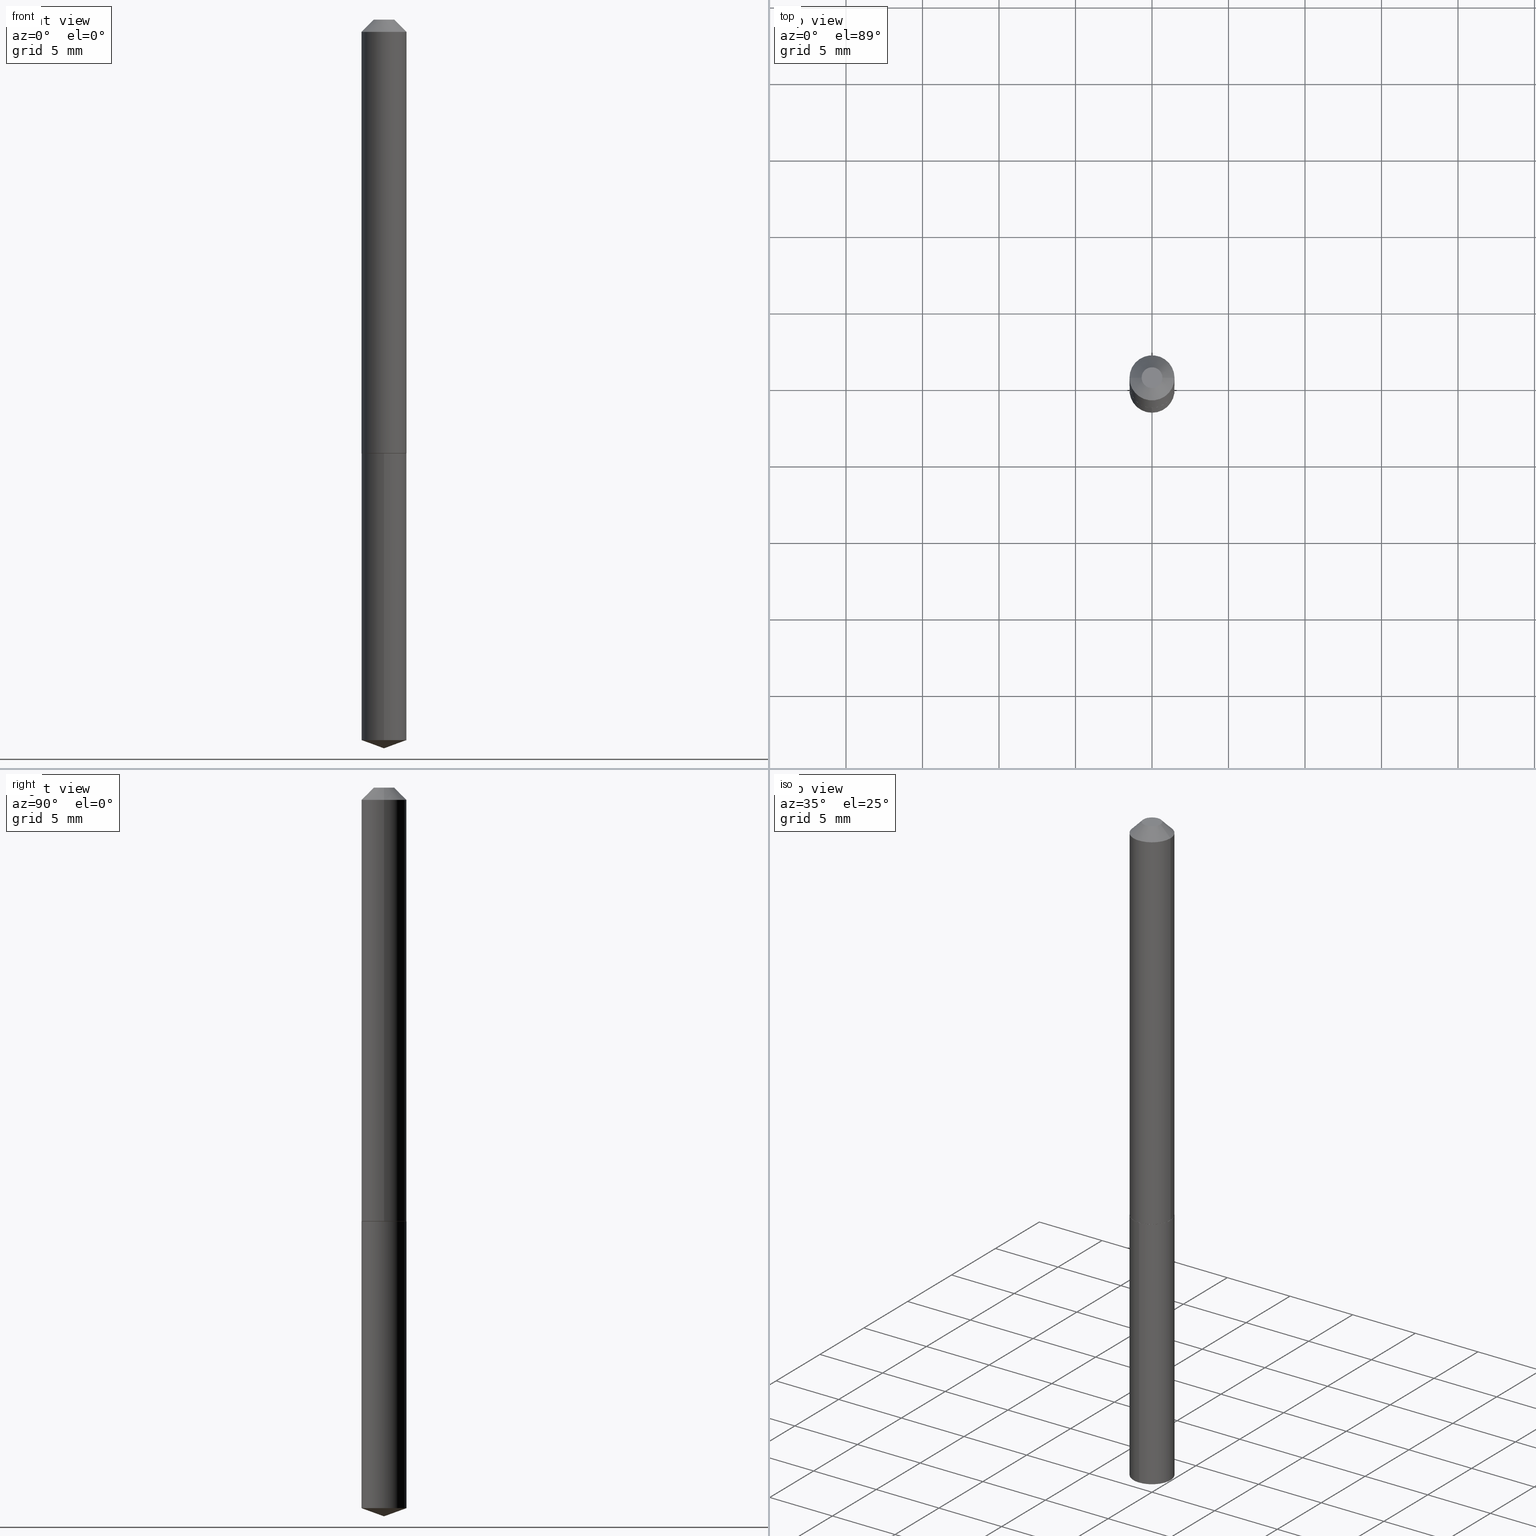
[diagram: canonical four-view strip — front | top / right | iso, engineering-drawing reading convention]
A machine part, canonical four-view strip (front | top / right | iso — engineering-drawing reading convention). The complete STEP part file that produces these views, byte-faithful:
ISO-10303-21;
HEADER;
FILE_DESCRIPTION (( 'STEP AP203' ),
    '1' );
FILE_NAME ('56241.STEP',
    '2024-04-22T21:21:04',
    ( '' ),
    ( '' ),
    'SwSTEP 2.0',
    'SolidWorks 2023',
    '' );
FILE_SCHEMA (( 'CONFIG_CONTROL_DESIGN' ));
ENDSEC;

DATA;
#1 = CARTESIAN_POINT ( 'NONE',  ( -9.168668753438929462E-28, 1.309224726088777290E-13, 37.49507874015748143 ) ) ;
#2 = DIRECTION ( 'NONE',  ( 6.982962677686265922E-15, 1.000000000000000000, -3.491717149119900614E-15 ) ) ;
#3 = CLOSED_SHELL ( 'NONE', ( #272, #341, #197, #292, #41, #182, #44, #338 ) ) ;
#4 = DIRECTION ( 'NONE',  ( 1.000000000000000000, -6.982962677686265922E-15, 0.000000000000000000 ) ) ;
#5 = APPROVAL_ROLE ( '' ) ;
#6 = FACE_OUTER_BOUND ( 'NONE', #353, .T. ) ;
#7 = PERSON_AND_ORGANIZATION_ROLE ( 'classification_officer' ) ;
#8 = LINE ( 'NONE', #359, #164 ) ;
#9 = ORIENTED_EDGE ( 'NONE', *, *, #90, .T. ) ;
#10 = AXIS2_PLACEMENT_3D ( 'NONE', #363, #148, #122 ) ;
#11 = CARTESIAN_POINT ( 'NONE',  ( 2.994835545909321190E-48, -4.275831445896965764E-34, -1.224646799147350977E-19 ) ) ;
#12 = ORGANIZATION ( 'UNSPECIFIED', 'UNSPECIFIED', '' ) ;
#13 = ORIENTED_EDGE ( 'NONE', *, *, #278, .T. ) ;
#14 = AXIS2_PLACEMENT_3D ( 'NONE', #145, #58, #86 ) ;
#15 = VERTEX_POINT ( 'NONE', #330 ) ;
#16 = DIRECTION ( 'NONE',  ( -1.000000000000000000, 6.982962677686266711E-15, 0.000000000000000000 ) ) ;
#17 = ORIENTED_EDGE ( 'NONE', *, *, #51, .F. ) ;
#18 = PLANE ( 'NONE',  #92 ) ;
#19 = ORIENTED_EDGE ( 'NONE', *, *, #35, .F. ) ;
#20 = EDGE_CURVE ( 'NONE', #376, #345, #234, .T. ) ;
#21 = APPLICATION_PROTOCOL_DEFINITION ( 'international standard', 'config_control_design', 1994, #103 ) ;
#22 = VERTEX_POINT ( 'NONE', #331 ) ;
#23 = VECTOR ( 'NONE', #118, 39.37007874015748143 ) ;
#24 = ORIENTED_EDGE ( 'NONE', *, *, #90, .F. ) ;
#25 = DIRECTION ( 'NONE',  ( 1.000000000000000000, 0.000000000000000000, 0.000000000000000000 ) ) ;
#26 = DIRECTION ( 'NONE',  ( 1.000000000000000000, -6.982962677686265922E-15, 0.000000000000000000 ) ) ;
#27 = CALENDAR_DATE ( 2024, 22, 4 ) ;
#28 = CARTESIAN_POINT ( 'NONE',  ( 0.05800000000000000294, -5.141206271446525225E-16, -0.03125000000000020123 ) ) ;
#29 = APPLICATION_CONTEXT ( 'configuration controlled 3d designs of mechanical parts and assemblies' ) ;
#30 = AXIS2_PLACEMENT_3D ( 'NONE', #266, #389, #4 ) ;
#31 = LOCAL_TIME ( 17, 21, 4.000000000000000000, #203 ) ;
#32 = APPROVAL_PERSON_ORGANIZATION ( #233, #133, #85 ) ;
#33 = CARTESIAN_POINT ( 'NONE',  ( 4.584945263904332442E-29, -6.546969654599812467E-15, -1.875000000000000000 ) ) ;
#34 = FACE_OUTER_BOUND ( 'NONE', #283, .T. ) ;
#35 = EDGE_CURVE ( 'NONE', #22, #52, #64, .T. ) ;
#36 = LINE ( 'NONE', #150, #115 ) ;
#37 = ADVANCED_FACE ( 'NONE', ( #184 ), #130, .T. ) ;
#38 = PERSON_AND_ORGANIZATION ( #270, #12 ) ;
#39 = AXIS2_PLACEMENT_3D ( 'NONE', #163, #368, #100 ) ;
#40 = LINE ( 'NONE', #371, #55 ) ;
#41 = ADVANCED_FACE ( 'NONE', ( #211 ), #300, .T. ) ;
#42 = DIRECTION ( 'NONE',  ( -2.445304140748977564E-29, 3.491717149119900219E-15, 1.000000000000000000 ) ) ;
#43 = DIRECTION ( 'NONE',  ( -0.7071067811865452413, 2.468850131082233000E-15, -0.7071067811865497932 ) ) ;
#44 = ADVANCED_FACE ( 'NONE', ( #34 ), #121, .T. ) ;
#45 = EDGE_LOOP ( 'NONE', ( #264, #162, #372 ) ) ;
#46 = CARTESIAN_POINT ( 'NONE',  ( 2.729143187702612729E-29, -3.896493174148950582E-15, -1.116000000000000103 ) ) ;
#47 = AXIS2_PLACEMENT_3D ( 'NONE', #235, #149, #302 ) ;
#48 = ORIENTED_EDGE ( 'NONE', *, *, #240, .F. ) ;
#49 = PRODUCT_DEFINITION_FORMATION_WITH_SPECIFIED_SOURCE ( 'ANY', '', #362, .NOT_KNOWN. ) ;
#50 = DIRECTION ( 'NONE',  ( 1.000000000000000000, -6.982962677686266711E-15, 4.876176775795935793E-29 ) ) ;
#51 = EDGE_CURVE ( 'NONE', #252, #102, #215, .T. ) ;
#52 = VERTEX_POINT ( 'NONE', #181 ) ;
#53 = EDGE_LOOP ( 'NONE', ( #78, #138, #223, #262 ) ) ;
#54 = ORIENTED_EDGE ( 'NONE', *, *, #383, .T. ) ;
#55 = VECTOR ( 'NONE', #217, 39.37007874015748854 ) ;
#56 = LOCAL_TIME ( 17, 21, 4.000000000000000000, #327 ) ;
#57 = DIRECTION ( 'NONE',  ( 1.000000000000000000, -6.982962677686265922E-15, 0.000000000000000000 ) ) ;
#58 = DIRECTION ( 'NONE',  ( -2.445468806185136597E-29, 3.491481338843145583E-15, 1.000000000000000000 ) ) ;
#59 = APPROVAL_STATUS ( 'not_yet_approved' ) ;
#60 = DIRECTION ( 'NONE',  ( 2.445468806185136597E-29, -3.491481338843145583E-15, -1.000000000000000000 ) ) ;
#61 = DIRECTION ( 'NONE',  ( -2.445468806185136877E-29, 3.491481338843145188E-15, 1.000000000000000000 ) ) ;
#62 = DIRECTION ( 'NONE',  ( -6.561838499445211107E-15, -0.9396926207859085389, 0.3420201433256683243 ) ) ;
#63 = VECTOR ( 'NONE', #132, 39.37007874015748854 ) ;
#64 = LINE ( 'NONE', #241, #67 ) ;
#65 = CARTESIAN_POINT ( 'NONE',  ( 7.642090019328601786E-31, -1.091087918388490144E-16, -0.03125000000000020123 ) ) ;
#66 = DIRECTION ( 'NONE',  ( 2.438088387897960049E-29, -3.491481338843145188E-15, -1.000000000000000000 ) ) ;
#67 = VECTOR ( 'NONE', #357, 39.37007874015748854 ) ;
#68 = CC_DESIGN_APPROVAL ( #133, ( #49 ) ) ;
#69 = CARTESIAN_POINT ( 'NONE',  ( 4.533507991115376796E-29, -6.472995386023078550E-15, -1.853889726412560668 ) ) ;
#70 = DIRECTION ( 'NONE',  ( -2.445304140748977564E-29, 3.491717149119900219E-15, 1.000000000000000000 ) ) ;
#71 = CARTESIAN_POINT ( 'NONE',  ( -0.02675000000000000294, 2.413486475475310035E-16, -2.449293598309669800E-19 ) ) ;
#72 = EDGE_LOOP ( 'NONE', ( #289, #136, #319, #380 ) ) ;
#73 = CC_DESIGN_PERSON_AND_ORGANIZATION_ASSIGNMENT ( #168, #231, ( #362 ) ) ;
#74 = ORIENTED_EDGE ( 'NONE', *, *, #224, .T. ) ;
#75 = ADVANCED_FACE ( 'NONE', ( #179 ), #274, .F. ) ;
#76 = FACE_OUTER_BOUND ( 'NONE', #112, .T. ) ;
#77 = ORIENTED_EDGE ( 'NONE', *, *, #251, .F. ) ;
#78 = ORIENTED_EDGE ( 'NONE', *, *, #321, .T. ) ;
#79 = CARTESIAN_POINT ( 'NONE',  ( 0.02675000000000000294, -3.452679985749931340E-16, -2.449293598276105174E-19 ) ) ;
#80 = ORIENTED_EDGE ( 'NONE', *, *, #20, .F. ) ;
#81 = CALENDAR_DATE ( 2024, 22, 4 ) ;
#82 = CARTESIAN_POINT ( 'NONE',  ( 2.729143187702612729E-29, -3.896493174148950582E-15, -1.116000000000000103 ) ) ;
#83 = APPROVAL ( #207, 'UNSPECIFIED' ) ;
#84 = SECURITY_CLASSIFICATION ( '', '', #155 ) ;
#85 = APPROVAL_ROLE ( '' ) ;
#86 = DIRECTION ( 'NONE',  ( 1.000000000000000000, -6.982962677686266711E-15, 4.876176775795935793E-29 ) ) ;
#87 = APPLICATION_PROTOCOL_DEFINITION ( 'international standard', 'config_control_design', 1994, #29 ) ;
#88 = DIRECTION ( 'NONE',  ( 2.445304140748976723E-29, -3.491717149119900614E-15, -1.000000000000000000 ) ) ;
#89 = CALENDAR_DATE ( 2024, 22, 4 ) ;
#90 = EDGE_CURVE ( 'NONE', #342, #22, #247, .T. ) ;
#91 = CYLINDRICAL_SURFACE ( 'NONE', #14, 0.05800000000000007233 ) ;
#92 = AXIS2_PLACEMENT_3D ( 'NONE', #245, #344, #187 ) ;
#93 = PRODUCT_RELATED_PRODUCT_CATEGORY ( 'detail', '', ( #362 ) ) ;
#94 = CARTESIAN_POINT ( 'NONE',  ( 7.642090019328601786E-31, -1.091087918388490144E-16, -0.03125000000000020123 ) ) ;
#95 = DIRECTION ( 'NONE',  ( -6.982962677686265922E-15, -1.000000000000000000, 2.355041373848502747E-15 ) ) ;
#96 = EDGE_CURVE ( 'NONE', #15, #252, #36, .T. ) ;
#97 = CARTESIAN_POINT ( 'NONE',  ( -0.05750000000000014128, -3.485281873912780623E-15, -1.116000000000000103 ) ) ;
#98 = VECTOR ( 'NONE', #117, 39.37007874015748143 ) ;
#99 = APPROVAL_PERSON_ORGANIZATION ( #259, #153, #176 ) ;
#100 = DIRECTION ( 'NONE',  ( 1.000000000000000000, -6.982962677686265922E-15, 0.000000000000000000 ) ) ;
#101 = CARTESIAN_POINT ( 'NONE',  ( 2.729143187702612729E-29, -3.896493174148950582E-15, -1.116000000000000103 ) ) ;
#102 = VERTEX_POINT ( 'NONE', #28 ) ;
#103 = APPLICATION_CONTEXT ( 'configuration controlled 3d designs of mechanical parts and assemblies' ) ;
#104 = ORIENTED_EDGE ( 'NONE', *, *, #96, .F. ) ;
#105 = DIRECTION ( 'NONE',  ( 1.000000000000000000, -6.982962677686265922E-15, 4.876188278482911222E-29 ) ) ;
#106 = ORIENTED_EDGE ( 'NONE', *, *, #51, .T. ) ;
#107 = DIRECTION ( 'NONE',  ( -2.445468806185136597E-29, 3.491481338843145583E-15, 1.000000000000000000 ) ) ;
#108 = CIRCLE ( 'NONE', #39, 0.05800000000000014172 ) ;
#109 = ORIENTED_EDGE ( 'NONE', *, *, #282, .T. ) ;
#110 = PERSON_AND_ORGANIZATION_ROLE ( 'creator' ) ;
#111 = ORIENTED_EDGE ( 'NONE', *, *, #373, .F. ) ;
#112 = EDGE_LOOP ( 'NONE', ( #384, #24 ) ) ;
#113 = DATE_TIME_ROLE ( 'creation_date' ) ;
#114 = FACE_OUTER_BOUND ( 'NONE', #45, .T. ) ;
#115 = VECTOR ( 'NONE', #120, 39.37007874015748143 ) ;
#116 = PERSON_AND_ORGANIZATION_ROLE ( 'creator' ) ;
#117 = DIRECTION ( 'NONE',  ( -2.445304140748977844E-29, 3.491717149119900614E-15, 1.000000000000000000 ) ) ;
#118 = DIRECTION ( 'NONE',  ( -2.445304140748977844E-29, 3.491717149119900614E-15, 1.000000000000000000 ) ) ;
#119 = UNCERTAINTY_MEASURE_WITH_UNIT (LENGTH_MEASURE( 1.000000000000000082E-05 ), #263, 'distance_accuracy_value', 'NONE');
#120 = DIRECTION ( 'NONE',  ( -2.445468806185136877E-29, 3.491481338843145188E-15, 1.000000000000000000 ) ) ;
#121 = CONICAL_SURFACE ( 'NONE', #209, 0.05800000000000000294, 0.7853981633974450594 ) ;
#122 = DIRECTION ( 'NONE',  ( 1.000000000000000000, -6.982962677686266711E-15, 0.000000000000000000 ) ) ;
#123 = CARTESIAN_POINT ( 'NONE',  ( 4.585316019990634427E-29, -6.546443326062097204E-15, -1.875000000000000000 ) ) ;
#124 = CARTESIAN_POINT ( 'NONE',  ( 0.000000000000000000, 0.000000000000000000, 0.000000000000000000 ) ) ;
#125 = CIRCLE ( 'NONE', #10, 0.05800000000000000294 ) ;
#126 = DIRECTION ( 'NONE',  ( -2.445468806185136597E-29, 3.491481338843145583E-15, 1.000000000000000000 ) ) ;
#127 = EDGE_CURVE ( 'NONE', #191, #221, #238, .T. ) ;
#128 = CC_DESIGN_PERSON_AND_ORGANIZATION_ASSIGNMENT ( #228, #348, ( #49 ) ) ;
#129 = DIMENSIONAL_EXPONENTS ( 1.000000000000000000, 0.000000000000000000, 0.000000000000000000, 0.000000000000000000, 0.000000000000000000, 0.000000000000000000, 0.000000000000000000 ) ;
#130 = CONICAL_SURFACE ( 'NONE', #281, 108.1684023407344739, 1.221730476396034604 ) ;
#131 = ORIENTED_EDGE ( 'NONE', *, *, #216, .T. ) ;
#132 = DIRECTION ( 'NONE',  ( 6.676917655467976807E-15, 0.9396926207859108704, 0.3420201433256617185 ) ) ;
#133 = APPROVAL ( #178, 'UNSPECIFIED' ) ;
#134 = VERTEX_POINT ( 'NONE', #298 ) ;
#135 = CARTESIAN_POINT ( 'NONE',  ( 7.642090019328601786E-31, -1.091087918388490144E-16, -0.03125000000000020123 ) ) ;
#136 = ORIENTED_EDGE ( 'NONE', *, *, #352, .T. ) ;
#137 = VECTOR ( 'NONE', #43, 39.37007874015748143 ) ;
#138 = ORIENTED_EDGE ( 'NONE', *, *, #210, .T. ) ;
#139 = EDGE_CURVE ( 'NONE', #102, #252, #125, .T. ) ;
#140 =( NAMED_UNIT ( * ) PLANE_ANGLE_UNIT ( ) SI_UNIT ( $, .RADIAN. ) );
#141 = ORIENTED_EDGE ( 'NONE', *, *, #276, .F. ) ;
#142 = COORDINATED_UNIVERSAL_TIME_OFFSET ( 5, 0, .BEHIND. ) ;
#143 = CARTESIAN_POINT ( 'NONE',  ( 2.727920453299519928E-29, -3.894747433479529079E-15, -1.115499999999999936 ) ) ;
#144 = EDGE_CURVE ( 'NONE', #134, #191, #301, .T. ) ;
#145 = CARTESIAN_POINT ( 'NONE',  ( 0.000000000000000000, 0.000000000000000000, 0.000000000000000000 ) ) ;
#146 = AXIS2_PLACEMENT_3D ( 'NONE', #82, #88, #2 ) ;
#147 = LOCAL_TIME ( 17, 21, 4.000000000000000000, #325 ) ;
#148 = DIRECTION ( 'NONE',  ( -2.445468806185136597E-29, 3.491481338843145583E-15, 1.000000000000000000 ) ) ;
#149 = DIRECTION ( 'NONE',  ( -2.445468806185136597E-29, 3.491481338843145583E-15, 1.000000000000000000 ) ) ;
#150 = CARTESIAN_POINT ( 'NONE',  ( -0.05800000000000007233, 4.121147867408586217E-16, -2.852982352347848756E-30 ) ) ;
#151 = AXIS2_PLACEMENT_3D ( 'NONE', #285, #70, #95 ) ;
#152 = DATE_AND_TIME ( #89, #56 ) ;
#153 = APPROVAL ( #59, 'UNSPECIFIED' ) ;
#154 = DIRECTION ( 'NONE',  ( -1.000000000000000000, 6.982962677686265922E-15, -4.876176775795935793E-29 ) ) ;
#155 = SECURITY_CLASSIFICATION_LEVEL ( 'unclassified' ) ;
#156 = DIRECTION ( 'NONE',  ( -2.445304140748977564E-29, 3.491717149119900219E-15, 1.000000000000000000 ) ) ;
#157 = FACE_OUTER_BOUND ( 'NONE', #198, .T. ) ;
#158 = AXIS2_PLACEMENT_3D ( 'NONE', #101, #339, #250 ) ;
#159 = LOCAL_TIME ( 17, 21, 4.000000000000000000, #212 ) ;
#160 = ADVANCED_BREP_SHAPE_REPRESENTATION ( '56241', ( #309, #180, #315 ), #219 ) ;
#161 = CC_DESIGN_PERSON_AND_ORGANIZATION_ASSIGNMENT ( #379, #110, ( #49 ) ) ;
#162 = ORIENTED_EDGE ( 'NONE', *, *, #276, .T. ) ;
#163 = CARTESIAN_POINT ( 'NONE',  ( 2.727920453299519928E-29, -3.894747433479529079E-15, -1.115499999999999936 ) ) ;
#164 = VECTOR ( 'NONE', #61, 39.37007874015748143 ) ;
#165 = EDGE_LOOP ( 'NONE', ( #48, #9, #169, #167 ) ) ;
#166 = DIRECTION ( 'NONE',  ( -2.445468806185136597E-29, 3.491481338843145583E-15, 1.000000000000000000 ) ) ;
#167 = ORIENTED_EDGE ( 'NONE', *, *, #216, .F. ) ;
#168 = PERSON_AND_ORGANIZATION ( #270, #12 ) ;
#169 = ORIENTED_EDGE ( 'NONE', *, *, #35, .T. ) ;
#170 = CARTESIAN_POINT ( 'NONE',  ( 0.000000000000000000, 0.000000000000000000, 0.000000000000000000 ) ) ;
#171 = AXIS2_PLACEMENT_3D ( 'NONE', #1, #324, #269 ) ;
#172 = AXIS2_PLACEMENT_3D ( 'NONE', #69, #185, #214 ) ;
#173 = ORIENTED_EDGE ( 'NONE', *, *, #329, .F. ) ;
#174 = CARTESIAN_POINT ( 'NONE',  ( 2.727920453299519928E-29, -3.894747433479529079E-15, -1.115499999999999936 ) ) ;
#175 = CARTESIAN_POINT ( 'NONE',  ( -4.050118353057583582E-16, -0.05800000000000649775, -1.853889726412560224 ) ) ;
#176 = APPROVAL_ROLE ( '' ) ;
#177 = CARTESIAN_POINT ( 'NONE',  ( 2.729143187702612729E-29, -3.896493174148950582E-15, -1.116000000000000103 ) ) ;
#178 = APPROVAL_STATUS ( 'not_yet_approved' ) ;
#179 = FACE_OUTER_BOUND ( 'NONE', #347, .T. ) ;
#180 = MANIFOLD_SOLID_BREP ( 'Body-Move/Copy2[2]', #3 ) ;
#181 = CARTESIAN_POINT ( 'NONE',  ( 0.05800000000000014172, -4.299759268785333684E-15, -1.115499999999999936 ) ) ;
#182 = ADVANCED_FACE ( 'NONE', ( #202 ), #91, .T. ) ;
#183 = APPROVAL_DATE_TIME ( #275, #83 ) ;
#184 = FACE_OUTER_BOUND ( 'NONE', #295, .T. ) ;
#185 = DIRECTION ( 'NONE',  ( -2.445304140748977564E-29, 3.491717149119900219E-15, 1.000000000000000000 ) ) ;
#186 = DIRECTION ( 'NONE',  ( -2.445304140748977564E-29, 3.491717149119900219E-15, 1.000000000000000000 ) ) ;
#187 = DIRECTION ( 'NONE',  ( 1.000000000000000000, -6.982962677686265922E-15, 4.876176775795935793E-29 ) ) ;
#188 = CARTESIAN_POINT ( 'NONE',  ( 5.989671091818642381E-48, -8.551662891793931527E-34, -2.449293598294701954E-19 ) ) ;
#189 = CIRCLE ( 'NONE', #172, 0.05800000000000000294 ) ;
#190 = VERTEX_POINT ( 'NONE', #204 ) ;
#191 = VERTEX_POINT ( 'NONE', #175 ) ;
#192 = CARTESIAN_POINT ( 'NONE',  ( 4.533507991115376796E-29, -6.472995386023078550E-15, -1.853889726412560668 ) ) ;
#193 = AXIS2_PLACEMENT_3D ( 'NONE', #135, #246, #16 ) ;
#194 = AXIS2_PLACEMENT_3D ( 'NONE', #188, #166, #105 ) ;
#195 = ORIENTED_EDGE ( 'NONE', *, *, #139, .F. ) ;
#196 = CARTESIAN_POINT ( 'NONE',  ( 4.121147867409035375E-16, 0.05799999999999354977, -1.853889726412560890 ) ) ;
#197 = ADVANCED_FACE ( 'NONE', ( #296 ), #260, .T. ) ;
#198 = EDGE_LOOP ( 'NONE', ( #350, #378 ) ) ;
#199 = CARTESIAN_POINT ( 'NONE',  ( 0.05800000000000000294, -5.070176757095978650E-16, -0.03125000000000020123 ) ) ;
#200 = EDGE_LOOP ( 'NONE', ( #104, #131, #227, #17 ) ) ;
#201 = AXIS2_PLACEMENT_3D ( 'NONE', #11, #66, #154 ) ;
#202 = FACE_OUTER_BOUND ( 'NONE', #200, .T. ) ;
#203 = COORDINATED_UNIVERSAL_TIME_OFFSET ( 5, 0, .BEHIND. ) ;
#204 = CARTESIAN_POINT ( 'NONE',  ( 4.121147867409035375E-16, 0.05799999999999611022, -1.116000000000000103 ) ) ;
#205 = ADVANCED_FACE ( 'NONE', ( #114 ), #322, .T. ) ;
#206 = LINE ( 'NONE', #326, #23 ) ;
#207 = APPROVAL_STATUS ( 'not_yet_approved' ) ;
#208 = CARTESIAN_POINT ( 'NONE',  ( -4.050118353057761076E-16, -0.05800000000000389566, -1.115999999999999881 ) ) ;
#209 = AXIS2_PLACEMENT_3D ( 'NONE', #65, #60, #361 ) ;
#210 = EDGE_CURVE ( 'NONE', #382, #190, #206, .T. ) ;
#211 = FACE_OUTER_BOUND ( 'NONE', #165, .T. ) ;
#212 = COORDINATED_UNIVERSAL_TIME_OFFSET ( 5, 0, .BEHIND. ) ;
#213 = CARTESIAN_POINT ( 'NONE',  ( -4.050118353057761076E-16, -0.05800000000000389566, -1.115999999999999881 ) ) ;
#214 = DIRECTION ( 'NONE',  ( -6.982962677686265922E-15, -1.000000000000000000, 4.710082747697005495E-15 ) ) ;
#215 = CIRCLE ( 'NONE', #306, 0.05800000000000000294 ) ;
#216 = EDGE_CURVE ( 'NONE', #15, #52, #108, .T. ) ;
#217 = DIRECTION ( 'NONE',  ( -0.7071067811865232589, 7.493145998870265808E-15, 0.7071067811865715536 ) ) ;
#218 = CARTESIAN_POINT ( 'NONE',  ( 2.729143187702612729E-29, -3.896493174148950582E-15, -1.116000000000000103 ) ) ;
#219 =( GEOMETRIC_REPRESENTATION_CONTEXT ( 3 ) GLOBAL_UNCERTAINTY_ASSIGNED_CONTEXT ( ( #119 ) ) GLOBAL_UNIT_ASSIGNED_CONTEXT ( ( #263, #140, #290 ) ) REPRESENTATION_CONTEXT ( 'NONE', 'WORKASPACE' ) );
#220 = PRODUCT_DEFINITION ( 'UNKNOWN', '', #49, #237 ) ;
#221 = VERTEX_POINT ( 'NONE', #213 ) ;
#222 = DIRECTION ( 'NONE',  ( -6.982962677686265922E-15, -1.000000000000000000, 2.355041373848502747E-15 ) ) ;
#223 = ORIENTED_EDGE ( 'NONE', *, *, #278, .F. ) ;
#224 = EDGE_CURVE ( 'NONE', #190, #221, #335, .T. ) ;
#225 = LINE ( 'NONE', #199, #243 ) ;
#226 = VECTOR ( 'NONE', #62, 39.37007874015748143 ) ;
#227 = ORIENTED_EDGE ( 'NONE', *, *, #358, .T. ) ;
#228 = PERSON_AND_ORGANIZATION ( #270, #12 ) ;
#229 = CC_DESIGN_DATE_AND_TIME_ASSIGNMENT ( #152, #239, ( #84 ) ) ;
#230 = ORIENTED_EDGE ( 'NONE', *, *, #383, .F. ) ;
#231 = PERSON_AND_ORGANIZATION_ROLE ( 'design_owner' ) ;
#232 = ORIENTED_EDGE ( 'NONE', *, *, #329, .T. ) ;
#233 = PERSON_AND_ORGANIZATION ( #270, #12 ) ;
#234 = CIRCLE ( 'NONE', #47, 0.02675000000000000294 ) ;
#235 = CARTESIAN_POINT ( 'NONE',  ( 5.989671091818642381E-48, -8.551662891793931527E-34, -2.449293598294701954E-19 ) ) ;
#236 = CARTESIAN_POINT ( 'NONE',  ( -9.168668753438929462E-28, 1.309224726088777290E-13, 37.49507874015748143 ) ) ;
#237 = DESIGN_CONTEXT ( 'detailed design', #103, 'design' ) ;
#238 = LINE ( 'NONE', #208, #98 ) ;
#239 = DATE_TIME_ROLE ( 'classification_date' ) ;
#240 = EDGE_CURVE ( 'NONE', #342, #15, #40, .T. ) ;
#241 = CARTESIAN_POINT ( 'NONE',  ( 0.05800000000000014172, -4.299759268785333684E-15, -1.115499999999999936 ) ) ;
#242 = AXIS2_PLACEMENT_3D ( 'NONE', #124, #126, #50 ) ;
#243 = VECTOR ( 'NONE', #387, 39.37007874015748143 ) ;
#244 = DIRECTION ( 'NONE',  ( 1.000000000000000000, -6.982962677686266711E-15, 0.000000000000000000 ) ) ;
#245 = CARTESIAN_POINT ( 'NONE',  ( 8.779036989851788172E-30, -6.547573488000525714E-15, -1.116000000000000103 ) ) ;
#246 = DIRECTION ( 'NONE',  ( 2.445468806185136597E-29, -3.491481338843145583E-15, -1.000000000000000000 ) ) ;
#247 = CIRCLE ( 'NONE', #340, 0.05750000000000014128 ) ;
#248 = CC_DESIGN_SECURITY_CLASSIFICATION ( #84, ( #49 ) ) ;
#249 = CC_DESIGN_APPROVAL ( #83, ( #84 ) ) ;
#250 = DIRECTION ( 'NONE',  ( 1.000000000000000000, -6.982962677686264344E-15, 0.000000000000000000 ) ) ;
#251 = EDGE_CURVE ( 'NONE', #345, #376, #369, .T. ) ;
#252 = VERTEX_POINT ( 'NONE', #305 ) ;
#253 = AXIS2_PLACEMENT_3D ( 'NONE', #218, #186, #288 ) ;
#254 = ORIENTED_EDGE ( 'NONE', *, *, #139, .T. ) ;
#255 = FACE_OUTER_BOUND ( 'NONE', #72, .T. ) ;
#256 = EDGE_LOOP ( 'NONE', ( #291, #258, #195, #320 ) ) ;
#257 = DATE_AND_TIME ( #299, #31 ) ;
#258 = ORIENTED_EDGE ( 'NONE', *, *, #96, .T. ) ;
#259 = PERSON_AND_ORGANIZATION ( #270, #12 ) ;
#260 = CONICAL_SURFACE ( 'NONE', #284, 0.05800000000000014172, 0.7853981633974141952 ) ;
#261 = APPROVAL_PERSON_ORGANIZATION ( #364, #83, #5 ) ;
#262 = ORIENTED_EDGE ( 'NONE', *, *, #127, .F. ) ;
#263 =( CONVERSION_BASED_UNIT ( 'INCH', #355 ) LENGTH_UNIT ( ) NAMED_UNIT ( #129 ) );
#264 = ORIENTED_EDGE ( 'NONE', *, *, #144, .F. ) ;
#265 = PERSON_AND_ORGANIZATION ( #270, #12 ) ;
#266 = CARTESIAN_POINT ( 'NONE',  ( 2.727920453299519928E-29, -3.894747433479529079E-15, -1.115499999999999936 ) ) ;
#267 = APPROVAL_DATE_TIME ( #351, #153 ) ;
#268 = CIRCLE ( 'NONE', #388, 0.05800000000000014172 ) ;
#269 = DIRECTION ( 'NONE',  ( -6.982962677686267499E-15, -1.000000000000000000, 3.475157955500687476E-15 ) ) ;
#270 = PERSON ( 'UNSPECIFIED', 'UNSPECIFIED', 'UNSPECIFIED', ('UNSPECIFIED'), ('UNSPECIFIED'), ('UNSPECIFIED') ) ;
#271 = DIRECTION ( 'NONE',  ( -6.982962677686267499E-15, -1.000000000000000000, 3.475157955500687476E-15 ) ) ;
#272 = ADVANCED_FACE ( 'NONE', ( #6 ), #367, .T. ) ;
#273 = DIRECTION ( 'NONE',  ( -2.445468806185136597E-29, 3.491481338843145583E-15, 1.000000000000000000 ) ) ;
#274 = PLANE ( 'NONE',  #146 ) ;
#275 = DATE_AND_TIME ( #336, #159 ) ;
#276 = EDGE_CURVE ( 'NONE', #134, #382, #277, .T. ) ;
#277 = LINE ( 'NONE', #123, #63 ) ;
#278 = EDGE_CURVE ( 'NONE', #221, #190, #294, .T. ) ;
#279 = DIRECTION ( 'NONE',  ( -6.982962677686265922E-15, -1.000000000000000000, 2.355041373848502747E-15 ) ) ;
#280 = PLANE ( 'NONE',  #201 ) ;
#281 = AXIS2_PLACEMENT_3D ( 'NONE', #236, #360, #271 ) ;
#282 = EDGE_CURVE ( 'NONE', #22, #342, #346, .T. ) ;
#283 = EDGE_LOOP ( 'NONE', ( #230, #77, #232, #106 ) ) ;
#284 = AXIS2_PLACEMENT_3D ( 'NONE', #143, #386, #26 ) ;
#285 = CARTESIAN_POINT ( 'NONE',  ( 2.729143187702612729E-29, -3.896493174148950582E-15, -1.116000000000000103 ) ) ;
#286 = ADVANCED_FACE ( 'NONE', ( #255 ), #377, .T. ) ;
#287 = ORIENTED_EDGE ( 'NONE', *, *, #144, .T. ) ;
#288 = DIRECTION ( 'NONE',  ( -6.982962677686265922E-15, -1.000000000000000000, 2.355041373848502747E-15 ) ) ;
#289 = ORIENTED_EDGE ( 'NONE', *, *, #210, .F. ) ;
#290 =( NAMED_UNIT ( * ) SI_UNIT ( $, .STERADIAN. ) SOLID_ANGLE_UNIT ( ) );
#291 = ORIENTED_EDGE ( 'NONE', *, *, #373, .T. ) ;
#292 = ADVANCED_FACE ( 'NONE', ( #76 ), #18, .F. ) ;
#293 = DIRECTION ( 'NONE',  ( 0.000000000000000000, 0.000000000000000000, 1.000000000000000000 ) ) ;
#294 = CIRCLE ( 'NONE', #328, 0.05800000000000000294 ) ;
#295 = EDGE_LOOP ( 'NONE', ( #141, #287, #317 ) ) ;
#296 = FACE_OUTER_BOUND ( 'NONE', #312, .T. ) ;
#297 = MECHANICAL_CONTEXT ( 'NONE', #29, 'mechanical' ) ;
#298 = CARTESIAN_POINT ( 'NONE',  ( 4.584945263904332442E-29, -6.546969654599814045E-15, -1.875000000000000000 ) ) ;
#299 = CALENDAR_DATE ( 2024, 22, 4 ) ;
#300 = CONICAL_SURFACE ( 'NONE', #30, 0.05800000000000014172, 0.7853981633974141952 ) ;
#301 = LINE ( 'NONE', #33, #226 ) ;
#302 = DIRECTION ( 'NONE',  ( 1.000000000000000000, -6.982962677686265922E-15, 4.876188278482911222E-29 ) ) ;
#303 = PRODUCT_DEFINITION_SHAPE ( 'NONE', 'NONE',  #220 ) ;
#304 = DIRECTION ( 'NONE',  ( 1.000000000000000000, -6.982962677686264344E-15, 0.000000000000000000 ) ) ;
#305 = CARTESIAN_POINT ( 'NONE',  ( -0.05800000000000000294, -1.589813325918329827E-15, -0.03125000000000020123 ) ) ;
#306 = AXIS2_PLACEMENT_3D ( 'NONE', #94, #323, #244 ) ;
#307 = CYLINDRICAL_SURFACE ( 'NONE', #242, 0.05800000000000007233 ) ;
#308 = DIRECTION ( 'NONE',  ( -2.445304140748977564E-29, 3.491717149119900219E-15, 1.000000000000000000 ) ) ;
#309 = MANIFOLD_SOLID_BREP ( 'Body-Move/Copy2[1]', #354 ) ;
#310 = CIRCLE ( 'NONE', #374, 0.05800000000000000294 ) ;
#311 = AXIS2_PLACEMENT_3D ( 'NONE', #46, #156, #279 ) ;
#312 = EDGE_LOOP ( 'NONE', ( #109, #314, #111, #19 ) ) ;
#313 = CYLINDRICAL_SURFACE ( 'NONE', #311, 0.05800000000000000294 ) ;
#314 = ORIENTED_EDGE ( 'NONE', *, *, #240, .T. ) ;
#315 = AXIS2_PLACEMENT_3D ( 'NONE', #170, #293, #25 ) ;
#316 = CARTESIAN_POINT ( 'NONE',  ( -0.05800000000000000294, 2.959030434669544691E-16, -0.03125000000000020123 ) ) ;
#317 = ORIENTED_EDGE ( 'NONE', *, *, #352, .F. ) ;
#318 =( LENGTH_UNIT ( ) NAMED_UNIT ( * ) SI_UNIT ( $, .METRE. ) );
#319 = ORIENTED_EDGE ( 'NONE', *, *, #127, .T. ) ;
#320 = ORIENTED_EDGE ( 'NONE', *, *, #358, .F. ) ;
#321 = EDGE_CURVE ( 'NONE', #191, #382, #310, .T. ) ;
#322 = CONICAL_SURFACE ( 'NONE', #171, 108.1684023407344739, 1.221730476396034604 ) ;
#323 = DIRECTION ( 'NONE',  ( -2.445468806185136597E-29, 3.491481338843145583E-15, 1.000000000000000000 ) ) ;
#324 = DIRECTION ( 'NONE',  ( -2.445304140748977564E-29, 3.491717149119900219E-15, 1.000000000000000000 ) ) ;
#325 = COORDINATED_UNIVERSAL_TIME_OFFSET ( 5, 0, .BEHIND. ) ;
#326 = CARTESIAN_POINT ( 'NONE',  ( 4.121147867408853444E-16, 0.05799999999999611022, -1.116000000000000103 ) ) ;
#327 = COORDINATED_UNIVERSAL_TIME_OFFSET ( 5, 0, .BEHIND. ) ;
#328 = AXIS2_PLACEMENT_3D ( 'NONE', #337, #42, #222 ) ;
#329 = EDGE_CURVE ( 'NONE', #345, #252, #334, .T. ) ;
#330 = CARTESIAN_POINT ( 'NONE',  ( -0.05800000000000014172, -3.482632646738669816E-15, -1.115499999999999936 ) ) ;
#331 = CARTESIAN_POINT ( 'NONE',  ( 0.05750000000000014128, -4.298013528115912180E-15, -1.116000000000000103 ) ) ;
#332 = DIRECTION ( 'NONE',  ( -6.982962677686265922E-15, -1.000000000000000000, 4.710082747697005495E-15 ) ) ;
#333 = SHAPE_DEFINITION_REPRESENTATION ( #303, #160 ) ;
#334 = LINE ( 'NONE', #316, #137 ) ;
#335 = CIRCLE ( 'NONE', #151, 0.05800000000000000294 ) ;
#336 = CALENDAR_DATE ( 2024, 22, 4 ) ;
#337 = CARTESIAN_POINT ( 'NONE',  ( 2.729143187702612729E-29, -3.896493174148950582E-15, -1.116000000000000103 ) ) ;
#338 = ADVANCED_FACE ( 'NONE', ( #157 ), #280, .F. ) ;
#339 = DIRECTION ( 'NONE',  ( -2.445468806185136597E-29, 3.491481338843145583E-15, 1.000000000000000000 ) ) ;
#340 = AXIS2_PLACEMENT_3D ( 'NONE', #177, #273, #304 ) ;
#341 = ADVANCED_FACE ( 'NONE', ( #366 ), #307, .T. ) ;
#342 = VERTEX_POINT ( 'NONE', #97 ) ;
#343 = CC_DESIGN_DATE_AND_TIME_ASSIGNMENT ( #385, #113, ( #220 ) ) ;
#344 = DIRECTION ( 'NONE',  ( -2.438088387897960049E-29, 3.491481338843145188E-15, 1.000000000000000000 ) ) ;
#345 = VERTEX_POINT ( 'NONE', #71 ) ;
#346 = CIRCLE ( 'NONE', #158, 0.05750000000000014128 ) ;
#347 = EDGE_LOOP ( 'NONE', ( #13, #74 ) ) ;
#348 = PERSON_AND_ORGANIZATION_ROLE ( 'design_supplier' ) ;
#349 = ADVANCED_FACE ( 'NONE', ( #365 ), #313, .T. ) ;
#350 = ORIENTED_EDGE ( 'NONE', *, *, #251, .T. ) ;
#351 = DATE_AND_TIME ( #27, #147 ) ;
#352 = EDGE_CURVE ( 'NONE', #382, #191, #189, .T. ) ;
#353 = EDGE_LOOP ( 'NONE', ( #80, #54, #254, #173 ) ) ;
#354 = CLOSED_SHELL ( 'NONE', ( #349, #205, #37, #286, #75 ) ) ;
#355 = LENGTH_MEASURE_WITH_UNIT ( LENGTH_MEASURE( 0.02539999999999999897 ), #318 );
#356 = LOCAL_TIME ( 17, 21, 4.000000000000000000, #142 ) ;
#357 = DIRECTION ( 'NONE',  ( 0.7071067811865232589, -2.468850131082003836E-15, 0.7071067811865715536 ) ) ;
#358 = EDGE_CURVE ( 'NONE', #52, #102, #8, .T. ) ;
#359 = CARTESIAN_POINT ( 'NONE',  ( 0.05800000000000007233, -4.050118353058039642E-16, 2.828182529961646347E-30 ) ) ;
#360 = DIRECTION ( 'NONE',  ( -2.445304140748977564E-29, 3.491717149119900219E-15, 1.000000000000000000 ) ) ;
#361 = DIRECTION ( 'NONE',  ( -1.000000000000000000, 6.982962677686266711E-15, 0.000000000000000000 ) ) ;
#362 = PRODUCT ( '56241', '56241', '', ( #297 ) ) ;
#363 = CARTESIAN_POINT ( 'NONE',  ( 7.642090019328601786E-31, -1.091087918388490144E-16, -0.03125000000000020123 ) ) ;
#364 = PERSON_AND_ORGANIZATION ( #270, #12 ) ;
#365 = FACE_OUTER_BOUND ( 'NONE', #53, .T. ) ;
#366 = FACE_OUTER_BOUND ( 'NONE', #256, .T. ) ;
#367 = CONICAL_SURFACE ( 'NONE', #193, 0.05800000000000000294, 0.7853981633974450594 ) ;
#368 = DIRECTION ( 'NONE',  ( -2.445468806185136597E-29, 3.491481338843145583E-15, 1.000000000000000000 ) ) ;
#369 = CIRCLE ( 'NONE', #194, 0.02675000000000000294 ) ;
#370 = CC_DESIGN_APPROVAL ( #153, ( #220 ) ) ;
#371 = CARTESIAN_POINT ( 'NONE',  ( -0.05800000000000014172, -3.482632646738669816E-15, -1.115499999999999936 ) ) ;
#372 = ORIENTED_EDGE ( 'NONE', *, *, #321, .F. ) ;
#373 = EDGE_CURVE ( 'NONE', #52, #15, #268, .T. ) ;
#374 = AXIS2_PLACEMENT_3D ( 'NONE', #192, #308, #332 ) ;
#375 = CC_DESIGN_PERSON_AND_ORGANIZATION_ASSIGNMENT ( #38, #7, ( #84 ) ) ;
#376 = VERTEX_POINT ( 'NONE', #79 ) ;
#377 = CYLINDRICAL_SURFACE ( 'NONE', #253, 0.05800000000000000294 ) ;
#378 = ORIENTED_EDGE ( 'NONE', *, *, #20, .T. ) ;
#379 = PERSON_AND_ORGANIZATION ( #270, #12 ) ;
#380 = ORIENTED_EDGE ( 'NONE', *, *, #224, .F. ) ;
#381 = APPROVAL_DATE_TIME ( #257, #133 ) ;
#382 = VERTEX_POINT ( 'NONE', #196 ) ;
#383 = EDGE_CURVE ( 'NONE', #376, #102, #225, .T. ) ;
#384 = ORIENTED_EDGE ( 'NONE', *, *, #282, .F. ) ;
#385 = DATE_AND_TIME ( #81, #356 ) ;
#386 = DIRECTION ( 'NONE',  ( -2.445468806185136597E-29, 3.491481338843145583E-15, 1.000000000000000000 ) ) ;
#387 = DIRECTION ( 'NONE',  ( 0.7071067811865452413, -7.319954787623248157E-15, -0.7071067811865497932 ) ) ;
#388 = AXIS2_PLACEMENT_3D ( 'NONE', #174, #107, #57 ) ;
#389 = DIRECTION ( 'NONE',  ( -2.445468806185136597E-29, 3.491481338843145583E-15, 1.000000000000000000 ) ) ;
#390 = CC_DESIGN_PERSON_AND_ORGANIZATION_ASSIGNMENT ( #265, #116, ( #220 ) ) ;
ENDSEC;
END-ISO-10303-21;
